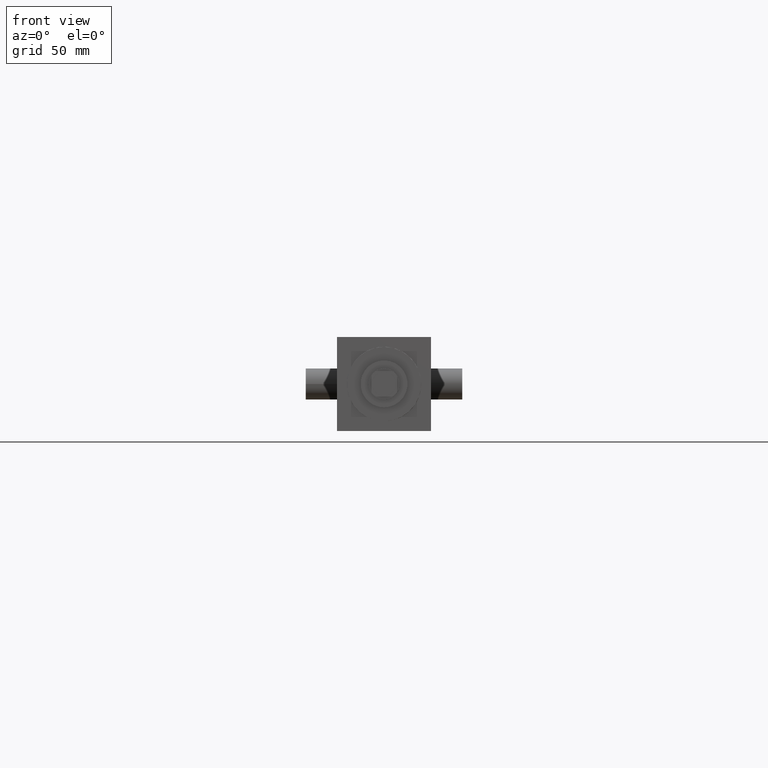
[diagram: clean part render]
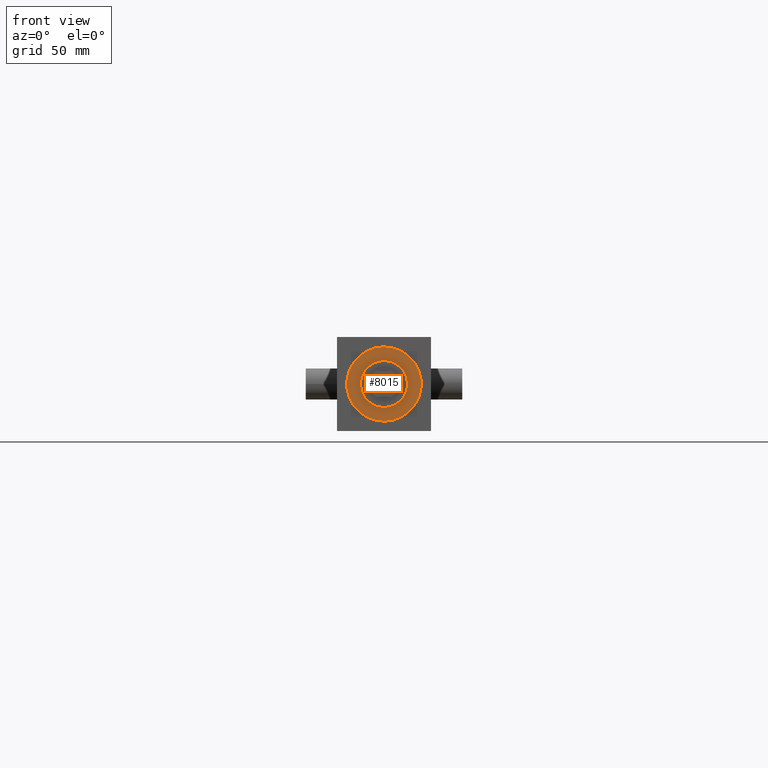
[diagram: same view with one face highlighted and labeled with its STEP entity id]
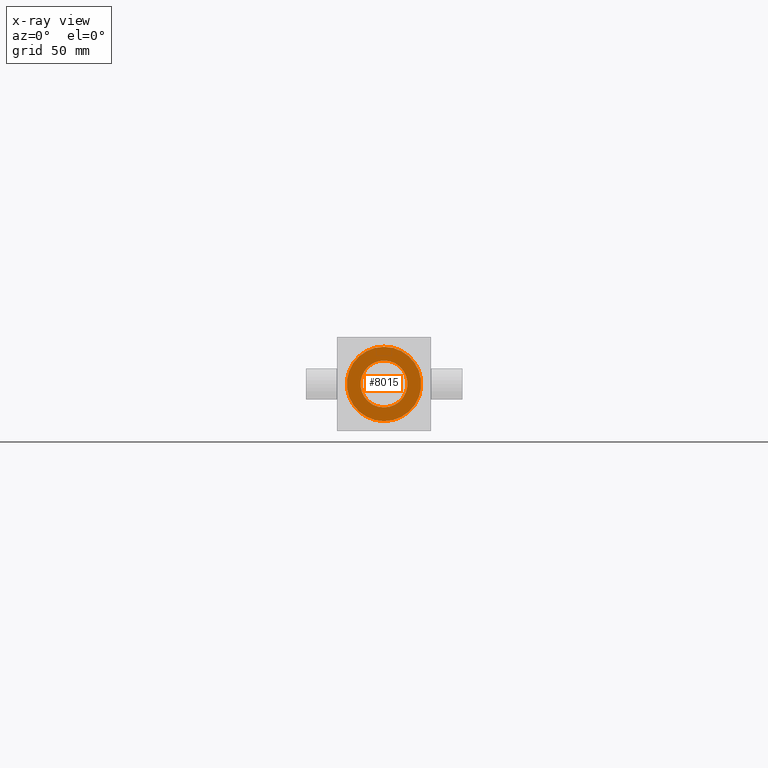
[diagram: x-ray of the same camera — body ghosted, the highlighted face saturated]
A machine part, front view. The second image highlights one B-rep face of the part: STEP entity #8015.
The next image is the same camera in x-ray: the body ghosted, the highlighted face saturated — about 0% of this face is hidden behind the body in this view.
In plain terms, the highlighted planar face has unit normal (0, -1, 0).
Its self-contained STEP definition (entity closure, byte-faithful):
#400=FACE_OUTER_BOUND('',#402,.T.);
#401=FACE_BOUND('',#403,.T.);
#402=EDGE_LOOP('',(#404));
#403=EDGE_LOOP('',(#413));
#404=ORIENTED_EDGE('',*,*,#405,.T.);
#405=EDGE_CURVE('',#411,#411,#406,.T.);
#406=CIRCLE('',#407,3.016250000E+001);
#407=AXIS2_PLACEMENT_3D('',#408,#409,#410);
#408=CARTESIAN_POINT('',(0.000000000E+000,2.619375000E+001,0.000000000E+000));
#409=DIRECTION('',(0.0E+000,-1.0E+000,0.0E+000));
#410=DIRECTION('',(0.0E+000,0.0E+000,-1.0E+000));
#411=VERTEX_POINT('',#412);
#412=CARTESIAN_POINT('',(0.000000000E+000,2.619375000E+001,-3.016250000E+001));
#413=ORIENTED_EDGE('',*,*,#414,.F.);
#414=EDGE_CURVE('',#420,#420,#415,.T.);
#415=CIRCLE('',#416,1.905000000E+001);
#416=AXIS2_PLACEMENT_3D('',#417,#418,#419);
#417=CARTESIAN_POINT('',(0.000000000E+000,2.619375000E+001,0.000000000E+000));
#418=DIRECTION('',(0.0E+000,-1.0E+000,0.0E+000));
#419=DIRECTION('',(0.0E+000,0.0E+000,-1.0E+000));
#420=VERTEX_POINT('',#421);
#421=CARTESIAN_POINT('',(0.000000000E+000,2.619375000E+001,-1.905000000E+001));
#422=PLANE('',#423);
#423=AXIS2_PLACEMENT_3D('',#424,#425,#426);
#424=CARTESIAN_POINT('',(0.000000000E+000,2.619375000E+001,-1.905000000E+001));
#425=DIRECTION('',(0.0E+000,-1.0E+000,0.0E+000));
#426=DIRECTION('',(0.0E+000,0.0E+000,-1.0E+000));
#8015=ADVANCED_FACE('',(#400,#401),#422,.T.);